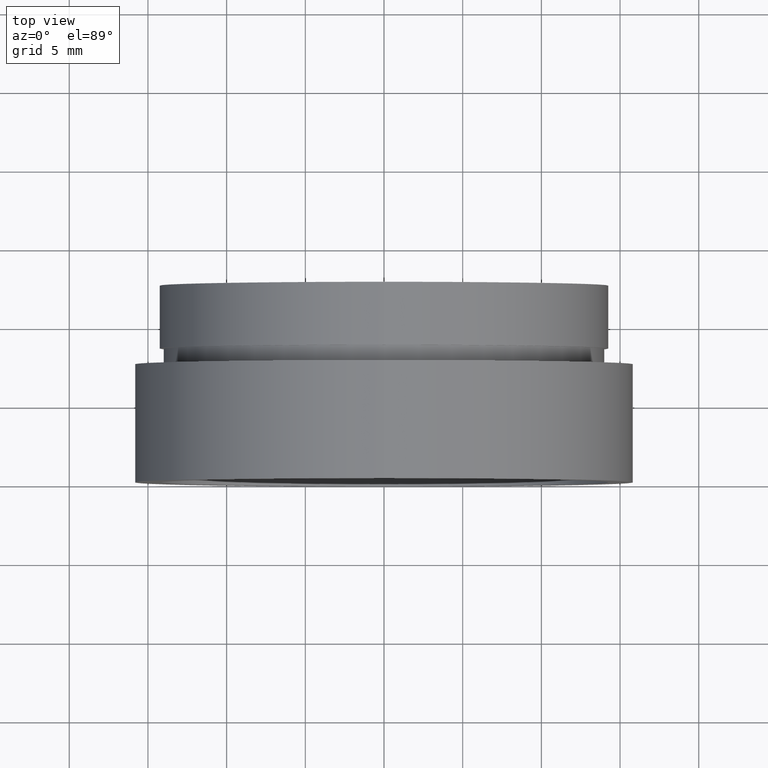
[diagram: clean part render]
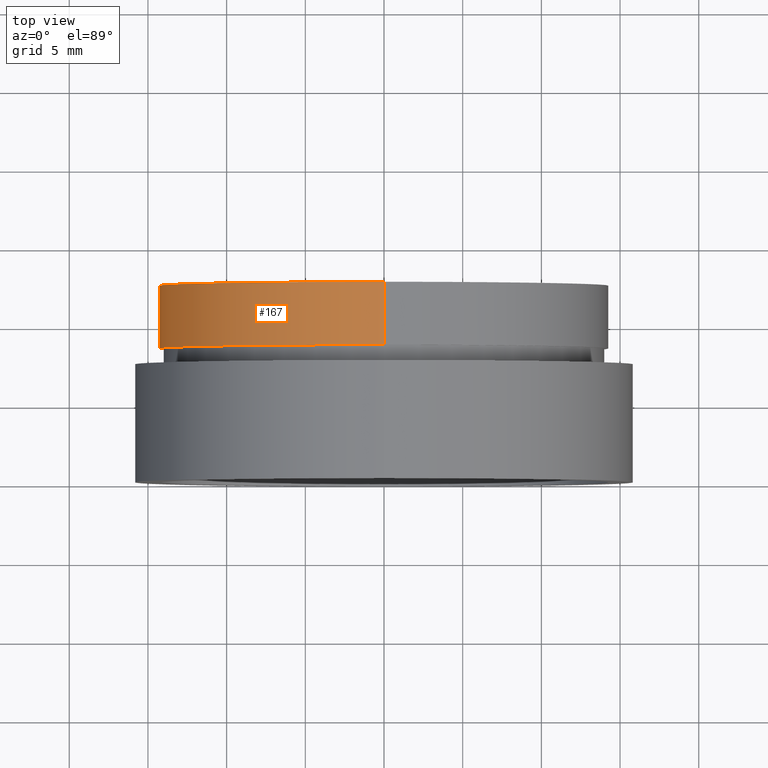
[diagram: same view with one face highlighted and labeled with its STEP entity id]
A machine part, top view. The second image highlights one B-rep face of the part: STEP entity #167.
In plain terms, the highlighted cylindrical surface (partial cylindrical patch) has radius 14.25 mm, axis along (-0, 1, -0).
Its self-contained STEP definition (entity closure, byte-faithful):
#5 = CARTESIAN_POINT ( 'NONE',  ( 1.745121688784980600E-015, 161.3761669434274500, -14.25000000000002000 ) ) ;
#8 = CARTESIAN_POINT ( 'NONE',  ( 1.745121688784980200E-015, 12.49999999999998400, -14.25000000000001800 ) ) ;
#16 = VERTEX_POINT ( 'NONE', #72 ) ;
#34 = CYLINDRICAL_SURFACE ( 'NONE', #453, 14.25000000000002000 ) ;
#36 = CARTESIAN_POINT ( 'NONE',  ( 0.0000000000000000000, 161.3761669434274500, 14.25000000000002000 ) ) ;
#72 = CARTESIAN_POINT ( 'NONE',  ( 0.0000000000000000000, 8.499999999999980500, 14.25000000000002000 ) ) ;
#94 = CARTESIAN_POINT ( 'NONE',  ( 1.745121688784980600E-015, 8.499999999999980500, -14.25000000000002000 ) ) ;
#95 = VECTOR ( 'NONE', #371, 1000.000000000000000 ) ;
#97 = EDGE_CURVE ( 'NONE', #16, #552, #582, .T. ) ;
#113 = VECTOR ( 'NONE', #570, 1000.000000000000000 ) ;
#121 = ORIENTED_EDGE ( 'NONE', *, *, #97, .T. ) ;
#133 = CARTESIAN_POINT ( 'NONE',  ( 0.0000000000000000000, 8.499999999999980500, 0.0000000000000000000 ) ) ;
#167 = ADVANCED_FACE ( 'NONE', ( #227 ), #34, .T. ) ;
#169 = ORIENTED_EDGE ( 'NONE', *, *, #217, .F. ) ;
#200 = CARTESIAN_POINT ( 'NONE',  ( 0.0000000000000000000, 12.49999999999998400, 14.25000000000001800 ) ) ;
#203 = EDGE_CURVE ( 'NONE', #604, #16, #467, .T. ) ;
#217 = EDGE_CURVE ( 'NONE', #604, #360, #544, .T. ) ;
#227 = FACE_OUTER_BOUND ( 'NONE', #585, .T. ) ;
#238 = DIRECTION ( 'NONE',  ( 0.0000000000000000000, 0.0000000000000000000, 1.000000000000000000 ) ) ;
#275 = CIRCLE ( 'NONE', #384, 14.25000000000001800 ) ;
#280 = DIRECTION ( 'NONE',  ( -0.0000000000000000000, 1.000000000000000000, -0.0000000000000000000 ) ) ;
#290 = DIRECTION ( 'NONE',  ( 0.0000000000000000000, 0.0000000000000000000, 1.000000000000000000 ) ) ;
#321 = DIRECTION ( 'NONE',  ( -0.0000000000000000000, 1.000000000000000000, -0.0000000000000000000 ) ) ;
#326 = CARTESIAN_POINT ( 'NONE',  ( 0.0000000000000000000, 161.3761669434274500, 0.0000000000000000000 ) ) ;
#329 = DIRECTION ( 'NONE',  ( 0.0000000000000000000, 0.0000000000000000000, 1.000000000000000000 ) ) ;
#360 = VERTEX_POINT ( 'NONE', #8 ) ;
#371 = DIRECTION ( 'NONE',  ( -0.0000000000000000000, 1.000000000000000000, -0.0000000000000000000 ) ) ;
#374 = ORIENTED_EDGE ( 'NONE', *, *, #567, .F. ) ;
#375 = AXIS2_PLACEMENT_3D ( 'NONE', #133, #527, #238 ) ;
#384 = AXIS2_PLACEMENT_3D ( 'NONE', #516, #280, #290 ) ;
#417 = ORIENTED_EDGE ( 'NONE', *, *, #203, .T. ) ;
#453 = AXIS2_PLACEMENT_3D ( 'NONE', #326, #321, #329 ) ;
#467 = CIRCLE ( 'NONE', #375, 14.25000000000002000 ) ;
#516 = CARTESIAN_POINT ( 'NONE',  ( 0.0000000000000000000, 12.49999999999998400, 0.0000000000000000000 ) ) ;
#527 = DIRECTION ( 'NONE',  ( -0.0000000000000000000, 1.000000000000000000, -0.0000000000000000000 ) ) ;
#544 = LINE ( 'NONE', #5, #113 ) ;
#552 = VERTEX_POINT ( 'NONE', #200 ) ;
#567 = EDGE_CURVE ( 'NONE', #360, #552, #275, .T. ) ;
#570 = DIRECTION ( 'NONE',  ( -0.0000000000000000000, 1.000000000000000000, -0.0000000000000000000 ) ) ;
#582 = LINE ( 'NONE', #36, #95 ) ;
#585 = EDGE_LOOP ( 'NONE', ( #169, #417, #121, #374 ) ) ;
#604 = VERTEX_POINT ( 'NONE', #94 ) ;